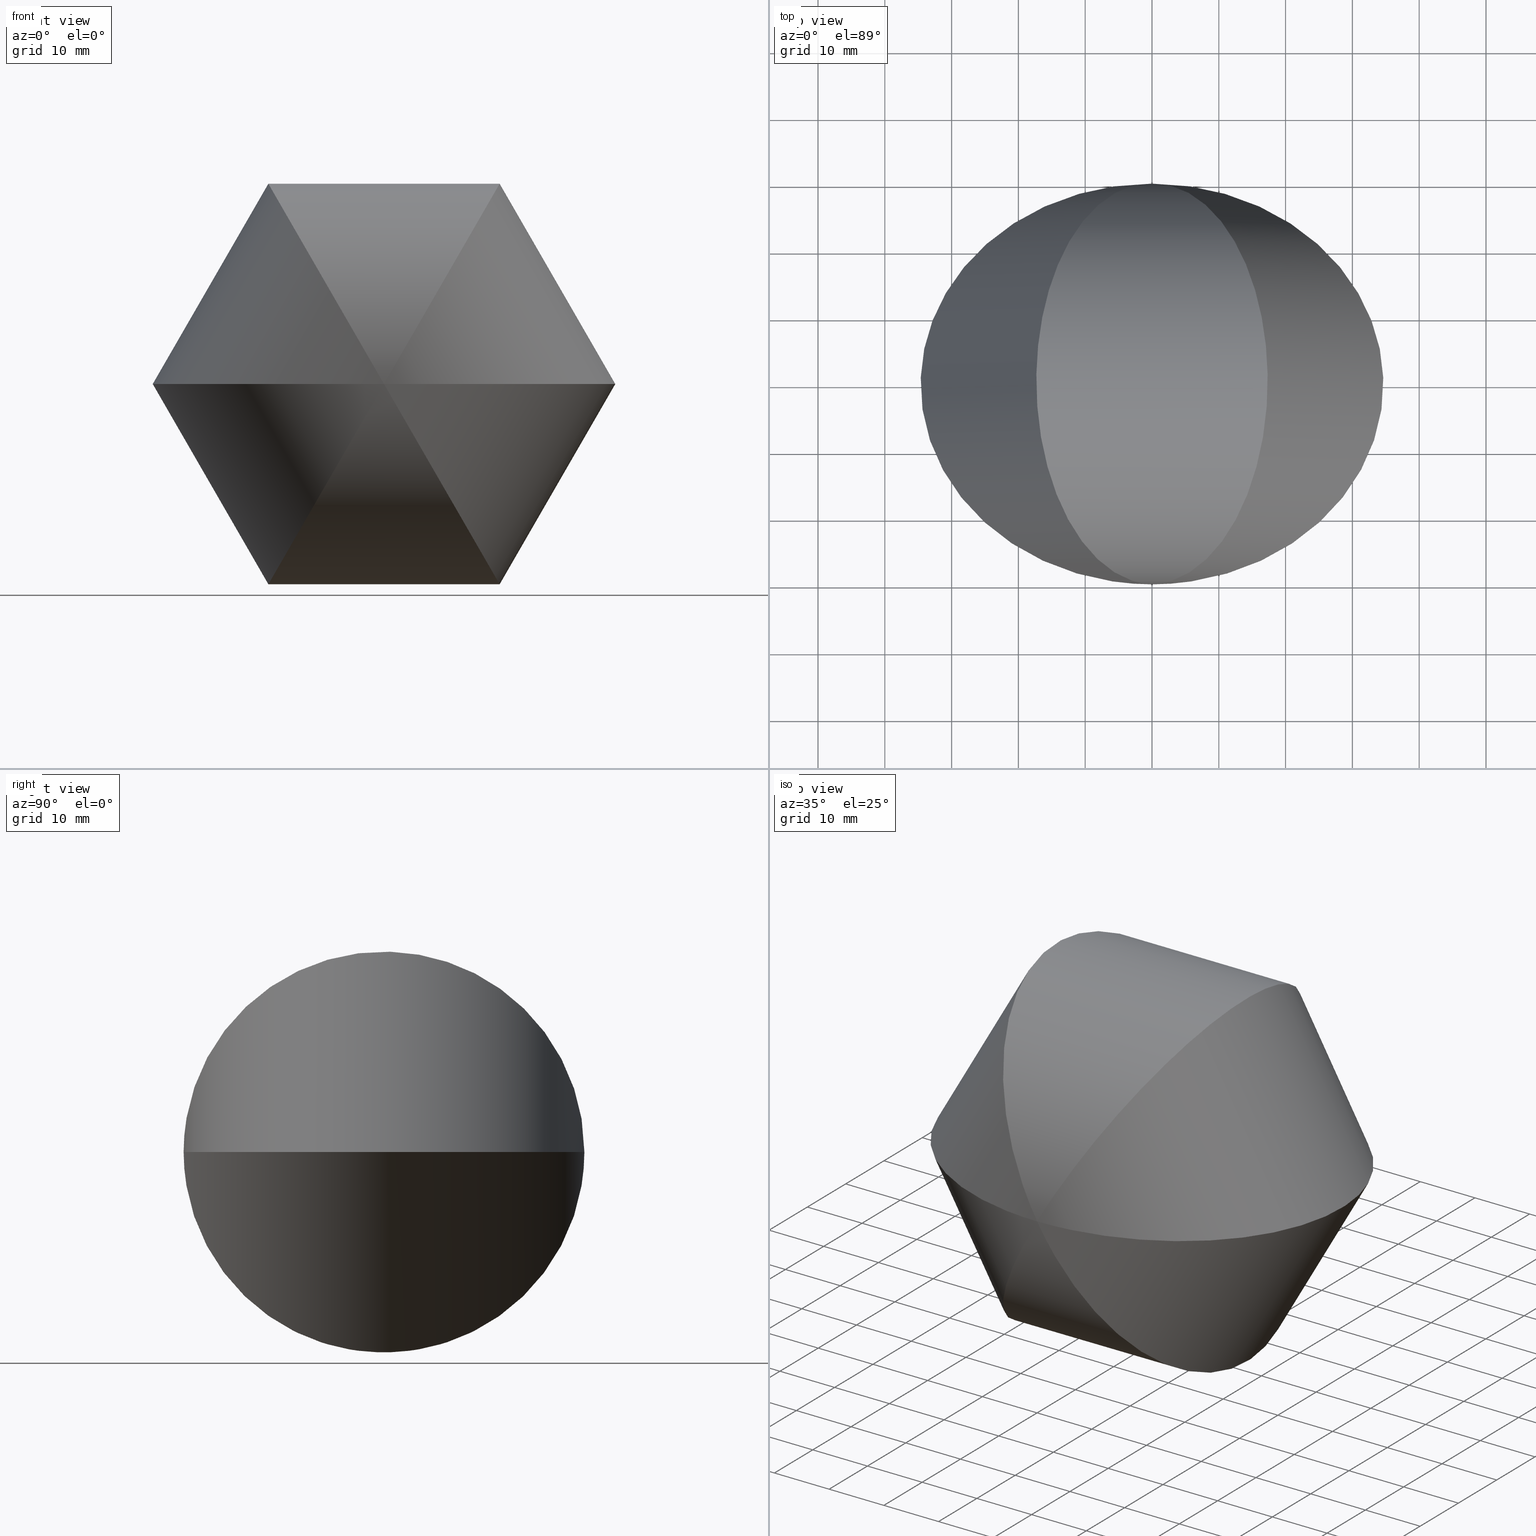
[diagram: canonical four-view strip — front | top / right | iso, engineering-drawing reading convention]
A machine part, canonical four-view strip (front | top / right | iso — engineering-drawing reading convention). The complete STEP part file that produces these views, byte-faithful:
ISO-10303-21;
HEADER;
FILE_DESCRIPTION (( 'STEP AP203' ),
    '1' );
FILE_NAME ('3562.STEP',
    '2021-09-29T13:09:09',
    ( '' ),
    ( '' ),
    'SwSTEP 2.0',
    'SolidWorks 2018',
    '' );
FILE_SCHEMA (( 'CONFIG_CONTROL_DESIGN' ));
ENDSEC;

DATA;
#1 = APPROVAL_ROLE ( '' ) ;
#2 = APPROVAL_DATE_TIME ( #148, #254 ) ;
#3 = PERSON_AND_ORGANIZATION_ROLE ( 'design_supplier' ) ;
#4 = CC_DESIGN_DATE_AND_TIME_ASSIGNMENT ( #154, #185, ( #250 ) ) ;
#5 = LOCAL_TIME ( 15, 9, 9.000000000000000000, #132 ) ;
#6 = APPROVAL_STATUS ( 'not_yet_approved' ) ;
#7 = DATE_AND_TIME ( #222, #54 ) ;
#8 = COORDINATED_UNIVERSAL_TIME_OFFSET ( 1, 0, .AHEAD. ) ;
#9 = AXIS2_PLACEMENT_3D ( 'NONE', #140, #37, #201 ) ;
#10 = DIRECTION ( 'NONE',  ( -0.4999999999999919509, -4.592425496802550306E-16, -0.8660254037844432595 ) ) ;
#11 = APPROVAL ( #246, 'UNSPECIFIED' ) ;
#12 = APPROVAL_PERSON_ORGANIZATION ( #70, #254, #103 ) ;
#13 = FACE_OUTER_BOUND ( 'NONE', #94, .T. ) ;
#14 = CARTESIAN_POINT ( 'NONE',  ( -6.938893903907228378E-15, 30.00000000000000000, 0.000000000000000000 ) ) ;
#15 = DESIGN_CONTEXT ( 'detailed design', #127, 'design' ) ;
#16 = CC_DESIGN_APPROVAL ( #238, ( #87 ) ) ;
#17 = LOCAL_TIME ( 15, 9, 9.000000000000000000, #93 ) ;
#18 = CARTESIAN_POINT ( 'NONE',  ( 6.938893903907228378E-15, -30.00000000000000000, 6.938893903907228378E-15 ) ) ;
#19 = CARTESIAN_POINT ( 'NONE',  ( -34.64101615137789025, -30.00000000000001421, 60.00000000000000711 ) ) ;
#20 = MANIFOLD_SOLID_BREP ( 'Kreismuster2', #203 ) ;
#21 = PERSON_AND_ORGANIZATION_ROLE ( 'creator' ) ;
#22 = APPROVAL_PERSON_ORGANIZATION ( #251, #227, #150 ) ;
#23 = CALENDAR_DATE ( 2021, 29, 9 ) ;
#24 =( BOUNDED_CURVE ( )  B_SPLINE_CURVE ( 3, ( #114, #92, #113, #56 ),
 .UNSPECIFIED., .F., .T. ) 
 B_SPLINE_CURVE_WITH_KNOTS ( ( 4, 4 ),
 ( 4.712388980384689674, 7.853981633974482790 ),
 .UNSPECIFIED. ) 
 CURVE ( )  GEOMETRIC_REPRESENTATION_ITEM ( )  RATIONAL_B_SPLINE_CURVE ( ( 1.000000000000000000, 0.3333333333333333703, 0.3333333333333333703, 1.000000000000000000 ) ) 
 REPRESENTATION_ITEM ( '' )  );
#25 = CC_DESIGN_PERSON_AND_ORGANIZATION_ASSIGNMENT ( #206, #267, ( #229 ) ) ;
#26 = COORDINATED_UNIVERSAL_TIME_OFFSET ( 1, 0, .AHEAD. ) ;
#27 = PERSON_AND_ORGANIZATION_ROLE ( 'classification_officer' ) ;
#28 = CC_DESIGN_APPROVAL ( #11, ( #250 ) ) ;
#29 = FACE_OUTER_BOUND ( 'NONE', #79, .T. ) ;
#30 = UNCERTAINTY_MEASURE_WITH_UNIT (LENGTH_MEASURE( 1.000000000000000082E-05 ), #78, 'distance_accuracy_value', 'NONE');
#31 = AXIS2_PLACEMENT_3D ( 'NONE', #230, #10, #137 ) ;
#32 = CARTESIAN_POINT ( 'NONE',  ( -6.938893903907228378E-15, 30.00000000000000000, 0.000000000000000000 ) ) ;
#33 = PERSON_AND_ORGANIZATION ( #134, #166 ) ;
#34 = CARTESIAN_POINT ( 'NONE',  ( 34.64101615137736445, -29.99999999999999289, 60.00000000000000711 ) ) ;
#35 = ADVANCED_FACE ( 'NONE', ( #13 ), #257, .T. ) ;
#36 = ORIENTED_EDGE ( 'NONE', *, *, #151, .T. ) ;
#37 = DIRECTION ( 'NONE',  ( 0.000000000000000000, 0.000000000000000000, 1.000000000000000000 ) ) ;
#38 = CARTESIAN_POINT ( 'NONE',  ( 6.938893903907228378E-15, -30.00000000000000000, 6.938893903907228378E-15 ) ) ;
#39 = DIRECTION ( 'NONE',  ( -0.5000000000000041078, -4.592425496802587777E-16, 0.8660254037844363761 ) ) ;
#40 = DATE_AND_TIME ( #128, #53 ) ;
#41 = APPLICATION_PROTOCOL_DEFINITION ( 'international standard', 'config_control_design', 1994, #102 ) ;
#42 = LOCAL_TIME ( 15, 9, 9.000000000000000000, #49 ) ;
#43 = CC_DESIGN_PERSON_AND_ORGANIZATION_ASSIGNMENT ( #116, #125, ( #126 ) ) ;
#44 = SECURITY_CLASSIFICATION_LEVEL ( 'unclassified' ) ;
#45 = MECHANICAL_CONTEXT ( 'NONE', #217, 'mechanical' ) ;
#46 = ORIENTED_EDGE ( 'NONE', *, *, #248, .T. ) ;
#47 = PRODUCT_RELATED_PRODUCT_CATEGORY ( 'detail', '', ( #228 ) ) ;
#48 = AXIS2_PLACEMENT_3D ( 'NONE', #216, #39, #176 ) ;
#49 = COORDINATED_UNIVERSAL_TIME_OFFSET ( 1, 0, .AHEAD. ) ;
#50 = FACE_OUTER_BOUND ( 'NONE', #147, .T. ) ;
#51 = APPROVAL_STATUS ( 'not_yet_approved' ) ;
#52 = PERSON_AND_ORGANIZATION ( #134, #166 ) ;
#53 = LOCAL_TIME ( 15, 9, 9.000000000000000000, #131 ) ;
#54 = LOCAL_TIME ( 15, 9, 9.000000000000000000, #63 ) ;
#55 = APPROVAL ( #145, 'UNSPECIFIED' ) ;
#56 = CARTESIAN_POINT ( 'NONE',  ( 6.938893903907228378E-15, -30.00000000000000000, 6.938893903907228378E-15 ) ) ;
#57 = APPROVAL_PERSON_ORGANIZATION ( #164, #11, #108 ) ;
#58 = CC_DESIGN_APPROVAL ( #227, ( #215 ) ) ;
#59 = CARTESIAN_POINT ( 'NONE',  ( -34.64101615137732892, -30.00000000000001421, -60.00000000000000711 ) ) ;
#60 = AXIS2_PLACEMENT_3D ( 'NONE', #97, #173, #197 ) ;
#61 = CARTESIAN_POINT ( 'NONE',  ( 6.938893903907228378E-15, -30.00000000000000000, 6.938893903907228378E-15 ) ) ;
#62 = SECURITY_CLASSIFICATION_LEVEL ( 'unclassified' ) ;
#63 = COORDINATED_UNIVERSAL_TIME_OFFSET ( 1, 0, .AHEAD. ) ;
#64 = PERSON_AND_ORGANIZATION_ROLE ( 'classification_officer' ) ;
#65 = LOCAL_TIME ( 15, 9, 9.000000000000000000, #178 ) ;
#66 = CALENDAR_DATE ( 2021, 29, 9 ) ;
#67 = APPROVAL_ROLE ( '' ) ;
#68 = APPROVAL_ROLE ( '' ) ;
#69 = CC_DESIGN_APPROVAL ( #55, ( #212 ) ) ;
#70 = PERSON_AND_ORGANIZATION ( #134, #166 ) ;
#71 = CYLINDRICAL_SURFACE ( 'NONE', #31, 30.00000000000000000 ) ;
#72 = PERSON_AND_ORGANIZATION ( #134, #166 ) ;
#73 = CARTESIAN_POINT ( 'NONE',  ( -0.000000000000000000, 0.000000000000000000, 0.000000000000000000 ) ) ;
#74 = APPROVAL_DATE_TIME ( #40, #227 ) ;
#75 = CYLINDRICAL_SURFACE ( 'NONE', #135, 30.00000000000000355 ) ;
#76 = DIRECTION ( 'NONE',  ( 0.4999999999999980016, -1.530808498934197734E-16, 0.8660254037844398178 ) ) ;
#77 = CC_DESIGN_PERSON_AND_ORGANIZATION_ASSIGNMENT ( #111, #224, ( #152 ) ) ;
#78 =( LENGTH_UNIT ( ) NAMED_UNIT ( * ) SI_UNIT ( .MILLI., .METRE. ) );
#79 = EDGE_LOOP ( 'NONE', ( #195, #247 ) ) ;
#80 = CARTESIAN_POINT ( 'NONE',  ( -34.64101615137736445, 29.99999999999997158, -60.00000000000002842 ) ) ;
#81 = DIRECTION ( 'NONE',  ( 0.000000000000000000, 0.000000000000000000, 1.000000000000000000 ) ) ;
#82 = CYLINDRICAL_SURFACE ( 'NONE', #60, 30.00000000000000000 ) ;
#83 = CC_DESIGN_SECURITY_CLASSIFICATION ( #215, ( #212 ) ) ;
#84 = APPLICATION_PROTOCOL_DEFINITION ( 'international standard', 'config_control_design', 1994, #127 ) ;
#85 =( BOUNDED_CURVE ( )  B_SPLINE_CURVE ( 3, ( #237, #180, #19, #61 ),
 .UNSPECIFIED., .F., .T. ) 
 B_SPLINE_CURVE_WITH_KNOTS ( ( 4, 4 ),
 ( 4.712388980384689674, 7.853981633974482790 ),
 .UNSPECIFIED. ) 
 CURVE ( )  GEOMETRIC_REPRESENTATION_ITEM ( )  RATIONAL_B_SPLINE_CURVE ( ( 1.000000000000000000, 0.3333333333333333703, 0.3333333333333333703, 1.000000000000000000 ) ) 
 REPRESENTATION_ITEM ( '' )  );
#86 = EDGE_CURVE ( 'NONE', #149, #234, #110, .T. ) ;
#87 = PRODUCT_DEFINITION_FORMATION_WITH_SPECIFIED_SOURCE ( 'ANY', '', #228, .NOT_KNOWN. ) ;
#88 = CALENDAR_DATE ( 2021, 29, 9 ) ;
#89 = ORIENTED_EDGE ( 'NONE', *, *, #139, .F. ) ;
#90 = ORIENTED_EDGE ( 'NONE', *, *, #86, .F. ) ;
#91 = EDGE_CURVE ( 'NONE', #149, #234, #24, .T. ) ;
#92 = CARTESIAN_POINT ( 'NONE',  ( 34.64101615137762735, 30.00000000000001421, -59.99999999999998579 ) ) ;
#93 = COORDINATED_UNIVERSAL_TIME_OFFSET ( 1, 0, .AHEAD. ) ;
#94 = EDGE_LOOP ( 'NONE', ( #46, #171 ) ) ;
#95 = CARTESIAN_POINT ( 'NONE',  ( 0.000000000000000000, 0.000000000000000000, 0.000000000000000000 ) ) ;
#96 = ADVANCED_FACE ( 'NONE', ( #101 ), #82, .T. ) ;
#97 = CARTESIAN_POINT ( 'NONE',  ( 0.000000000000000000, 0.000000000000000000, 0.000000000000000000 ) ) ;
#98 = DATE_AND_TIME ( #182, #65 ) ;
#99 = CC_DESIGN_PERSON_AND_ORGANIZATION_ASSIGNMENT ( #200, #3, ( #212 ) ) ;
#100 = APPROVAL_PERSON_ORGANIZATION ( #264, #55, #1 ) ;
#101 = FACE_OUTER_BOUND ( 'NONE', #239, .T. ) ;
#102 = APPLICATION_CONTEXT ( 'configuration controlled 3d designs of mechanical parts and assemblies' ) ;
#103 = APPROVAL_ROLE ( '' ) ;
#104 = DATE_TIME_ROLE ( 'creation_date' ) ;
#105 = LOCAL_TIME ( 15, 9, 9.000000000000000000, #26 ) ;
#106 = CC_DESIGN_PERSON_AND_ORGANIZATION_ASSIGNMENT ( #225, #64, ( #250 ) ) ;
#107 = APPROVAL_DATE_TIME ( #174, #196 ) ;
#108 = APPROVAL_ROLE ( '' ) ;
#109 = DATE_AND_TIME ( #219, #183 ) ;
#110 =( BOUNDED_CURVE ( )  B_SPLINE_CURVE ( 3, ( #32, #255, #34, #153 ),
 .UNSPECIFIED., .F., .T. ) 
 B_SPLINE_CURVE_WITH_KNOTS ( ( 4, 4 ),
 ( 4.712388980384689674, 7.853981633974482790 ),
 .UNSPECIFIED. ) 
 CURVE ( )  GEOMETRIC_REPRESENTATION_ITEM ( )  RATIONAL_B_SPLINE_CURVE ( ( 1.000000000000000000, 0.3333333333333333703, 0.3333333333333333703, 1.000000000000000000 ) ) 
 REPRESENTATION_ITEM ( '' )  );
#111 = PERSON_AND_ORGANIZATION ( #134, #166 ) ;
#112 = DIRECTION ( 'NONE',  ( 0.8660254037844397068, 2.651438096812270369E-16, -0.4999999999999979461 ) ) ;
#113 = CARTESIAN_POINT ( 'NONE',  ( 34.64101615137762735, -29.99999999999998224, -60.00000000000000711 ) ) ;
#114 = CARTESIAN_POINT ( 'NONE',  ( -6.938893903907228378E-15, 30.00000000000000000, 0.000000000000000000 ) ) ;
#115 = ADVANCED_FACE ( 'NONE', ( #29 ), #71, .T. ) ;
#116 = PERSON_AND_ORGANIZATION ( #134, #166 ) ;
#117 = DIRECTION ( 'NONE',  ( 0.8660254037844362651, 2.651438096812260015E-16, 0.5000000000000039968 ) ) ;
#118 = CYLINDRICAL_SURFACE ( 'NONE', #48, 30.00000000000000355 ) ;
#119 = DIRECTION ( 'NONE',  ( -1.000000000000000000, -6.123233995736766282E-16, 0.000000000000000000 ) ) ;
#120 = CC_DESIGN_DATE_AND_TIME_ASSIGNMENT ( #7, #204, ( #126 ) ) ;
#121 = DIRECTION ( 'NONE',  ( 0.000000000000000000, 0.000000000000000000, 1.000000000000000000 ) ) ;
#122 = APPLICATION_CONTEXT ( 'configuration controlled 3d designs of mechanical parts and assemblies' ) ;
#123 = LOCAL_TIME ( 15, 9, 9.000000000000000000, #136 ) ;
#124 =( NAMED_UNIT ( * ) SI_UNIT ( $, .STERADIAN. ) SOLID_ANGLE_UNIT ( ) );
#125 = PERSON_AND_ORGANIZATION_ROLE ( 'creator' ) ;
#126 = PRODUCT_DEFINITION ( 'UNKNOWN', '', #212, #15 ) ;
#127 = APPLICATION_CONTEXT ( 'configuration controlled 3d designs of mechanical parts and assemblies' ) ;
#128 = CALENDAR_DATE ( 2021, 29, 9 ) ;
#129 = CC_DESIGN_PERSON_AND_ORGANIZATION_ASSIGNMENT ( #256, #27, ( #215 ) ) ;
#130 = APPROVAL_STATUS ( 'not_yet_approved' ) ;
#131 = COORDINATED_UNIVERSAL_TIME_OFFSET ( 1, 0, .AHEAD. ) ;
#132 = COORDINATED_UNIVERSAL_TIME_OFFSET ( 1, 0, .AHEAD. ) ;
#133 = ADVANCED_FACE ( 'NONE', ( #253 ), #75, .T. ) ;
#134 = PERSON ( 'UNSPECIFIED', 'UNSPECIFIED', 'UNSPECIFIED', ('UNSPECIFIED'), ('UNSPECIFIED'), ('UNSPECIFIED') ) ;
#135 = AXIS2_PLACEMENT_3D ( 'NONE', #73, #235, #117 ) ;
#136 = COORDINATED_UNIVERSAL_TIME_OFFSET ( 1, 0, .AHEAD. ) ;
#137 = DIRECTION ( 'NONE',  ( -0.8660254037844432595, -2.651438096812281215E-16, 0.4999999999999919509 ) ) ;
#138 = CC_DESIGN_DATE_AND_TIME_ASSIGNMENT ( #98, #169, ( #215 ) ) ;
#139 = EDGE_CURVE ( 'NONE', #149, #234, #240, .T. ) ;
#140 = CARTESIAN_POINT ( 'NONE',  ( 0.000000000000000000, 0.000000000000000000, 0.000000000000000000 ) ) ;
#141 = CC_DESIGN_PERSON_AND_ORGANIZATION_ASSIGNMENT ( #72, #213, ( #228 ) ) ;
#142 = CARTESIAN_POINT ( 'NONE',  ( -69.28203230275511260, -30.00000000000002487, -7.124282176929701152E-13 ) ) ;
#143 = CARTESIAN_POINT ( 'NONE',  ( -69.28203230275512681, 29.99999999999999289, -7.336397224674680462E-13 ) ) ;
#144 = ORIENTED_EDGE ( 'NONE', *, *, #157, .F. ) ;
#145 = APPROVAL_STATUS ( 'not_yet_approved' ) ;
#146 = CC_DESIGN_DATE_AND_TIME_ASSIGNMENT ( #233, #104, ( #229 ) ) ;
#147 = EDGE_LOOP ( 'NONE', ( #36, #90 ) ) ;
#148 = DATE_AND_TIME ( #202, #105 ) ;
#149 = VERTEX_POINT ( 'NONE', #236 ) ;
#150 = APPROVAL_ROLE ( '' ) ;
#151 = EDGE_CURVE ( 'NONE', #149, #234, #85, .T. ) ;
#152 = PRODUCT ( '3562', '3562', '', ( #45 ) ) ;
#153 = CARTESIAN_POINT ( 'NONE',  ( 6.938893903907228378E-15, -30.00000000000000000, 6.938893903907228378E-15 ) ) ;
#154 = DATE_AND_TIME ( #66, #123 ) ;
#155 = ORIENTED_EDGE ( 'NONE', *, *, #157, .T. ) ;
#156 = ADVANCED_FACE ( 'NONE', ( #50 ), #226, .T. ) ;
#157 = EDGE_CURVE ( 'NONE', #234, #149, #249, .T. ) ;
#158 = COORDINATED_UNIVERSAL_TIME_OFFSET ( 1, 0, .AHEAD. ) ;
#159 = ORIENTED_EDGE ( 'NONE', *, *, #248, .F. ) ;
#160 = CARTESIAN_POINT ( 'NONE',  ( -6.938893903907228378E-15, 30.00000000000000000, 0.000000000000000000 ) ) ;
#161 = CARTESIAN_POINT ( 'NONE',  ( -6.938893903907228378E-15, 30.00000000000000000, 0.000000000000000000 ) ) ;
#162 = CARTESIAN_POINT ( 'NONE',  ( 6.938893903907228378E-15, -30.00000000000000000, 6.938893903907228378E-15 ) ) ;
#163 = CARTESIAN_POINT ( 'NONE',  ( 69.28203230275512681, -29.99999999999998224, 2.201497699787782325E-13 ) ) ;
#164 = PERSON_AND_ORGANIZATION ( #134, #166 ) ;
#165 = PERSON_AND_ORGANIZATION_ROLE ( 'creator' ) ;
#166 = ORGANIZATION ( 'UNSPECIFIED', 'UNSPECIFIED', '' ) ;
#167 = ORIENTED_EDGE ( 'NONE', *, *, #91, .T. ) ;
#168 = CALENDAR_DATE ( 2021, 29, 9 ) ;
#169 = DATE_TIME_ROLE ( 'classification_date' ) ;
#170 = SHAPE_DEFINITION_REPRESENTATION ( #241, #223 ) ;
#171 = ORIENTED_EDGE ( 'NONE', *, *, #91, .F. ) ;
#172 = PERSON_AND_ORGANIZATION ( #134, #166 ) ;
#173 = DIRECTION ( 'NONE',  ( 1.000000000000000000, 0.000000000000000000, 0.000000000000000000 ) ) ;
#174 = DATE_AND_TIME ( #23, #5 ) ;
#175 = CC_DESIGN_APPROVAL ( #254, ( #229 ) ) ;
#176 = DIRECTION ( 'NONE',  ( 0.8660254037844362651, 2.651438096812260015E-16, 0.5000000000000039968 ) ) ;
#177 =( NAMED_UNIT ( * ) PLANE_ANGLE_UNIT ( ) SI_UNIT ( $, .RADIAN. ) );
#178 = COORDINATED_UNIVERSAL_TIME_OFFSET ( 1, 0, .AHEAD. ) ;
#179 = CARTESIAN_POINT ( 'NONE',  ( 69.28203230275511260, 30.00000000000002842, 2.413612747532763403E-13 ) ) ;
#180 = CARTESIAN_POINT ( 'NONE',  ( -34.64101615137791867, 30.00000000000000355, 59.99999999999998579 ) ) ;
#181 = MECHANICAL_CONTEXT ( 'NONE', #102, 'mechanical' ) ;
#182 = CALENDAR_DATE ( 2021, 29, 9 ) ;
#183 = LOCAL_TIME ( 15, 9, 9.000000000000000000, #158 ) ;
#184 = AXIS2_PLACEMENT_3D ( 'NONE', #95, #76, #112 ) ;
#185 = DATE_TIME_ROLE ( 'classification_date' ) ;
#186 = PRODUCT_RELATED_PRODUCT_CATEGORY ( 'detail', '', ( #152 ) ) ;
#187 = PRODUCT_DEFINITION_SHAPE ( 'NONE', 'NONE',  #229 ) ;
#188 = EDGE_LOOP ( 'NONE', ( #89, #144 ) ) ;
#189 = AXIS2_PLACEMENT_3D ( 'NONE', #261, #119, #121 ) ;
#190 = APPROVAL_DATE_TIME ( #198, #55 ) ;
#191 = DATE_AND_TIME ( #168, #214 ) ;
#192 = EDGE_LOOP ( 'NONE', ( #220, #159 ) ) ;
#193 = APPLICATION_PROTOCOL_DEFINITION ( 'international standard', 'config_control_design', 1994, #217 ) ;
#194 = CC_DESIGN_PERSON_AND_ORGANIZATION_ASSIGNMENT ( #172, #243, ( #87 ) ) ;
#195 = ORIENTED_EDGE ( 'NONE', *, *, #139, .T. ) ;
#196 = APPROVAL ( #130, 'UNSPECIFIED' ) ;
#197 = DIRECTION ( 'NONE',  ( 0.000000000000000000, 0.000000000000000000, -1.000000000000000000 ) ) ;
#198 = DATE_AND_TIME ( #252, #42 ) ;
#199 = ADVANCED_FACE ( 'NONE', ( #245 ), #118, .T. ) ;
#200 = PERSON_AND_ORGANIZATION ( #134, #166 ) ;
#201 = DIRECTION ( 'NONE',  ( 1.000000000000000000, 0.000000000000000000, 0.000000000000000000 ) ) ;
#202 = CALENDAR_DATE ( 2021, 29, 9 ) ;
#203 = CLOSED_SHELL ( 'NONE', ( #96, #35, #199, #133, #156, #115 ) ) ;
#204 = DATE_TIME_ROLE ( 'creation_date' ) ;
#205 = CC_DESIGN_PERSON_AND_ORGANIZATION_ASSIGNMENT ( #231, #165, ( #212 ) ) ;
#206 = PERSON_AND_ORGANIZATION ( #134, #166 ) ;
#207 = APPROVAL_DATE_TIME ( #191, #11 ) ;
#208 =( GEOMETRIC_REPRESENTATION_CONTEXT ( 3 ) GLOBAL_UNCERTAINTY_ASSIGNED_CONTEXT ( ( #30 ) ) GLOBAL_UNIT_ASSIGNED_CONTEXT ( ( #78, #177, #124 ) ) REPRESENTATION_CONTEXT ( 'NONE', 'WORKASPACE' ) );
#209 = PERSON_AND_ORGANIZATION ( #134, #166 ) ;
#210 =( BOUNDED_CURVE ( )  B_SPLINE_CURVE ( 3, ( #161, #179, #163, #162 ),
 .UNSPECIFIED., .F., .T. ) 
 B_SPLINE_CURVE_WITH_KNOTS ( ( 4, 4 ),
 ( 4.712388980384689674, 7.853981633974482790 ),
 .UNSPECIFIED. ) 
 CURVE ( )  GEOMETRIC_REPRESENTATION_ITEM ( )  RATIONAL_B_SPLINE_CURVE ( ( 1.000000000000000000, 0.3333333333333333703, 0.3333333333333333703, 1.000000000000000000 ) ) 
 REPRESENTATION_ITEM ( '' )  );
#211 = APPROVAL_DATE_TIME ( #109, #238 ) ;
#212 = PRODUCT_DEFINITION_FORMATION_WITH_SPECIFIED_SOURCE ( 'ANY', '', #152, .NOT_KNOWN. ) ;
#213 = PERSON_AND_ORGANIZATION_ROLE ( 'design_owner' ) ;
#214 = LOCAL_TIME ( 15, 9, 9.000000000000000000, #8 ) ;
#215 = SECURITY_CLASSIFICATION ( '', '', #44 ) ;
#216 = CARTESIAN_POINT ( 'NONE',  ( -0.000000000000000000, 0.000000000000000000, 0.000000000000000000 ) ) ;
#217 = APPLICATION_CONTEXT ( 'configuration controlled 3d designs of mechanical parts and assemblies' ) ;
#218 = CC_DESIGN_PERSON_AND_ORGANIZATION_ASSIGNMENT ( #33, #21, ( #87 ) ) ;
#219 = CALENDAR_DATE ( 2021, 29, 9 ) ;
#220 = ORIENTED_EDGE ( 'NONE', *, *, #86, .T. ) ;
#221 = APPROVAL_STATUS ( 'not_yet_approved' ) ;
#222 = CALENDAR_DATE ( 2021, 29, 9 ) ;
#223 = ADVANCED_BREP_SHAPE_REPRESENTATION ( '3562', ( #20, #9 ), #208 ) ;
#224 = PERSON_AND_ORGANIZATION_ROLE ( 'design_owner' ) ;
#225 = PERSON_AND_ORGANIZATION ( #134, #166 ) ;
#226 = CYLINDRICAL_SURFACE ( 'NONE', #189, 30.00000000000000000 ) ;
#227 = APPROVAL ( #51, 'UNSPECIFIED' ) ;
#228 = PRODUCT ( '3562', '3562', '', ( #181 ) ) ;
#229 = PRODUCT_DEFINITION ( 'UNKNOWN', '', #87, #258 ) ;
#230 = CARTESIAN_POINT ( 'NONE',  ( 0.000000000000000000, 0.000000000000000000, -0.000000000000000000 ) ) ;
#231 = PERSON_AND_ORGANIZATION ( #134, #166 ) ;
#232 = AXIS2_PLACEMENT_3D ( 'NONE', #265, #81, #242 ) ;
#233 = DATE_AND_TIME ( #88, #17 ) ;
#234 = VERTEX_POINT ( 'NONE', #18 ) ;
#235 = DIRECTION ( 'NONE',  ( -0.5000000000000041078, -4.592425496802587777E-16, 0.8660254037844363761 ) ) ;
#236 = CARTESIAN_POINT ( 'NONE',  ( -6.938893903907228378E-15, 30.00000000000000000, 0.000000000000000000 ) ) ;
#237 = CARTESIAN_POINT ( 'NONE',  ( -6.938893903907228378E-15, 30.00000000000000000, 0.000000000000000000 ) ) ;
#238 = APPROVAL ( #6, 'UNSPECIFIED' ) ;
#239 = EDGE_LOOP ( 'NONE', ( #155, #167 ) ) ;
#240 =( BOUNDED_CURVE ( )  B_SPLINE_CURVE ( 3, ( #14, #143, #142, #260 ),
 .UNSPECIFIED., .F., .T. ) 
 B_SPLINE_CURVE_WITH_KNOTS ( ( 4, 4 ),
 ( 4.712388980384689674, 7.853981633974482790 ),
 .UNSPECIFIED. ) 
 CURVE ( )  GEOMETRIC_REPRESENTATION_ITEM ( )  RATIONAL_B_SPLINE_CURVE ( ( 1.000000000000000000, 0.3333333333333333703, 0.3333333333333333703, 1.000000000000000000 ) ) 
 REPRESENTATION_ITEM ( '' )  );
#241 = PRODUCT_DEFINITION_SHAPE ( 'NONE', 'NONE',  #126 ) ;
#242 = DIRECTION ( 'NONE',  ( 1.000000000000000000, 0.000000000000000000, 0.000000000000000000 ) ) ;
#243 = PERSON_AND_ORGANIZATION_ROLE ( 'design_supplier' ) ;
#244 = APPROVAL_PERSON_ORGANIZATION ( #209, #238, #67 ) ;
#245 = FACE_OUTER_BOUND ( 'NONE', #188, .T. ) ;
#246 = APPROVAL_STATUS ( 'not_yet_approved' ) ;
#247 = ORIENTED_EDGE ( 'NONE', *, *, #151, .F. ) ;
#248 = EDGE_CURVE ( 'NONE', #149, #234, #210, .T. ) ;
#249 =( BOUNDED_CURVE ( )  B_SPLINE_CURVE ( 3, ( #38, #59, #80, #160 ),
 .UNSPECIFIED., .F., .T. ) 
 B_SPLINE_CURVE_WITH_KNOTS ( ( 4, 4 ),
 ( 1.570796326794895892, 4.712388980384688786 ),
 .UNSPECIFIED. ) 
 CURVE ( )  GEOMETRIC_REPRESENTATION_ITEM ( )  RATIONAL_B_SPLINE_CURVE ( ( 1.000000000000000000, 0.3333333333333333703, 0.3333333333333333703, 1.000000000000000000 ) ) 
 REPRESENTATION_ITEM ( '' )  );
#250 = SECURITY_CLASSIFICATION ( '', '', #62 ) ;
#251 = PERSON_AND_ORGANIZATION ( #134, #166 ) ;
#252 = CALENDAR_DATE ( 2021, 29, 9 ) ;
#253 = FACE_OUTER_BOUND ( 'NONE', #192, .T. ) ;
#254 = APPROVAL ( #221, 'UNSPECIFIED' ) ;
#255 = CARTESIAN_POINT ( 'NONE',  ( 34.64101615137732182, 30.00000000000002487, 60.00000000000000711 ) ) ;
#256 = PERSON_AND_ORGANIZATION ( #134, #166 ) ;
#257 = CYLINDRICAL_SURFACE ( 'NONE', #184, 30.00000000000000355 ) ;
#258 = DESIGN_CONTEXT ( 'detailed design', #122, 'design' ) ;
#259 = APPROVAL_PERSON_ORGANIZATION ( #52, #196, #68 ) ;
#260 = CARTESIAN_POINT ( 'NONE',  ( 6.938893903907228378E-15, -30.00000000000000000, 6.938893903907228378E-15 ) ) ;
#261 = CARTESIAN_POINT ( 'NONE',  ( 0.000000000000000000, 0.000000000000000000, 0.000000000000000000 ) ) ;
#262 = APPLICATION_PROTOCOL_DEFINITION ( 'international standard', 'config_control_design', 1994, #122 ) ;
#263 = CC_DESIGN_SECURITY_CLASSIFICATION ( #250, ( #87 ) ) ;
#264 = PERSON_AND_ORGANIZATION ( #134, #166 ) ;
#265 = CARTESIAN_POINT ( 'NONE',  ( 0.000000000000000000, 0.000000000000000000, 0.000000000000000000 ) ) ;
#266 = CC_DESIGN_APPROVAL ( #196, ( #126 ) ) ;
#267 = PERSON_AND_ORGANIZATION_ROLE ( 'creator' ) ;
ENDSEC;
END-ISO-10303-21;
